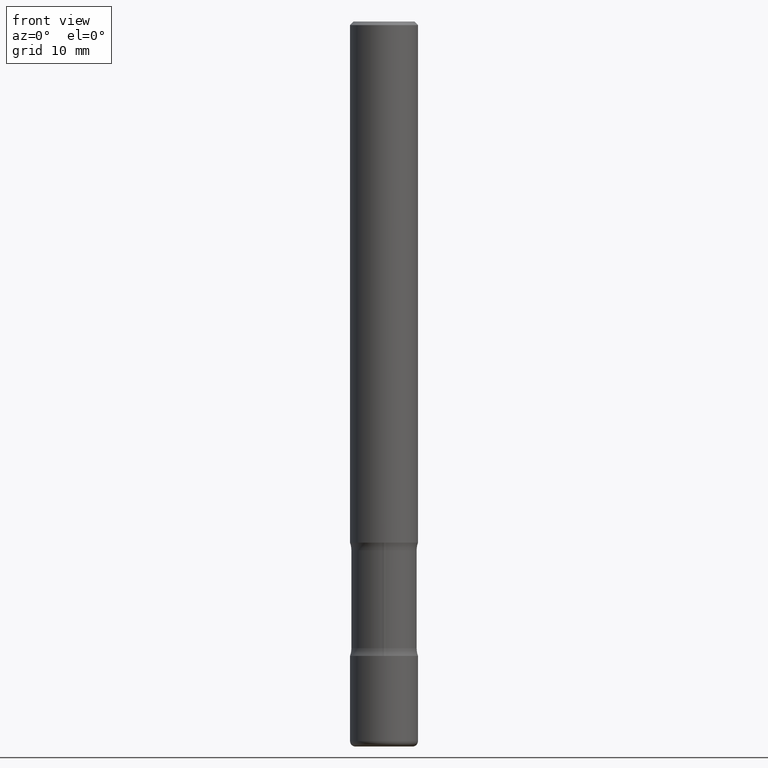
[diagram: clean part render]
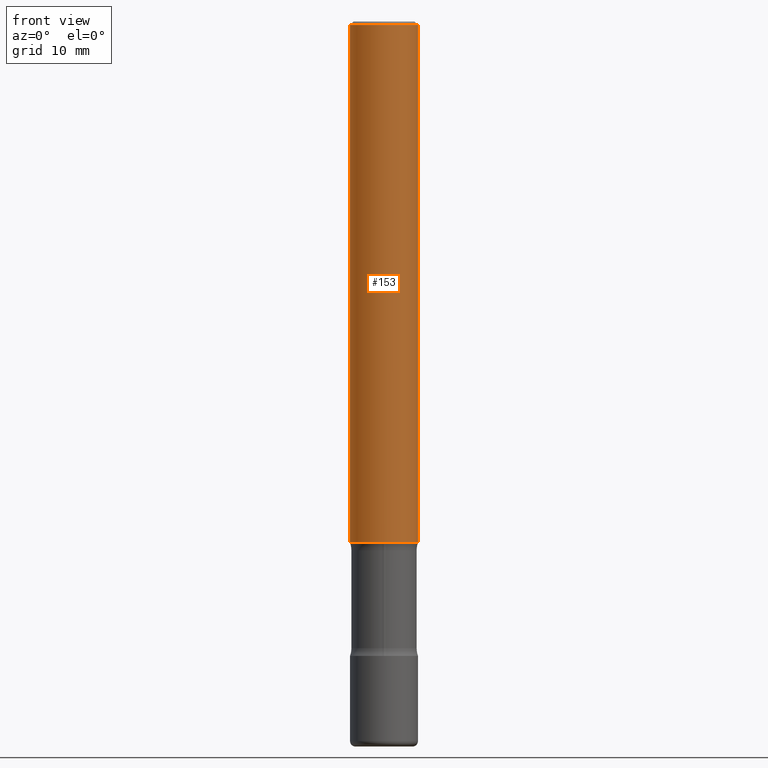
[diagram: same view with one face highlighted and labeled with its STEP entity id]
A machine part, front view. The second image highlights one B-rep face of the part: STEP entity #153.
In plain terms, the highlighted cylindrical surface (edge-blend (fillet) strip) has radius 4.7625 mm, axis along (-0, 0, 1).
Its self-contained STEP definition (entity closure, byte-faithful):
#6 = DIRECTION ( 'NONE',  ( -2.445468806185136597E-29, 3.491481338843145583E-15, 1.000000000000000000 ) ) ;
#35 = ORIENTED_EDGE ( 'NONE', *, *, #46, .T. ) ;
#38 = VERTEX_POINT ( 'NONE', #699 ) ;
#46 = EDGE_CURVE ( 'NONE', #116, #729, #624, .T. ) ;
#100 = DIRECTION ( 'NONE',  ( -2.445468806185136877E-29, 3.491481338843145188E-15, 1.000000000000000000 ) ) ;
#116 = VERTEX_POINT ( 'NONE', #122 ) ;
#122 = CARTESIAN_POINT ( 'NONE',  ( -0.1874999999999999722, -3.721651608425263776E-15, -2.875000000000000000 ) ) ;
#123 = EDGE_CURVE ( 'NONE', #38, #564, #557, .T. ) ;
#135 = DIRECTION ( 'NONE',  ( 1.000000000000000000, -6.982962677686265133E-15, 0.000000000000000000 ) ) ;
#145 = EDGE_LOOP ( 'NONE', ( #531, #35, #544, #232 ) ) ;
#153 = ADVANCED_FACE ( 'NONE', ( #328 ), #576, .T. ) ;
#194 = CARTESIAN_POINT ( 'NONE',  ( 4.890937612370283668E-31, -6.982962677686305168E-17, -0.02000000000000004205 ) ) ;
#199 = DIRECTION ( 'NONE',  ( -2.445468806185136597E-29, 3.491481338843145583E-15, 1.000000000000000000 ) ) ;
#212 = VECTOR ( 'NONE', #100, 39.37007874015748143 ) ;
#218 = CARTESIAN_POINT ( 'NONE',  ( -0.1874999999999999167, 1.332267629550187257E-15, -9.223003294227943787E-30 ) ) ;
#232 = ORIENTED_EDGE ( 'NONE', *, *, #123, .F. ) ;
#259 = CARTESIAN_POINT ( 'NONE',  ( 7.030722817782267716E-29, -1.003800884917404311E-14, -2.875000000000000000 ) ) ;
#271 = LINE ( 'NONE', #218, #387 ) ;
#328 = FACE_OUTER_BOUND ( 'NONE', #145, .T. ) ;
#337 = CARTESIAN_POINT ( 'NONE',  ( 0.1875000000000000278, -1.134731435124021811E-14, -2.875000000000000000 ) ) ;
#363 = EDGE_CURVE ( 'NONE', #729, #564, #368, .T. ) ;
#368 = LINE ( 'NONE', #794, #212 ) ;
#385 = AXIS2_PLACEMENT_3D ( 'NONE', #194, #639, #135 ) ;
#387 = VECTOR ( 'NONE', #394, 39.37007874015748143 ) ;
#392 = CARTESIAN_POINT ( 'NONE',  ( 0.000000000000000000, 0.000000000000000000, 0.000000000000000000 ) ) ;
#394 = DIRECTION ( 'NONE',  ( -2.445468806185136877E-29, 3.491481338843145188E-15, 1.000000000000000000 ) ) ;
#444 = DIRECTION ( 'NONE',  ( 1.000000000000000000, -6.982962677686265922E-15, 4.876176775795935793E-29 ) ) ;
#502 = AXIS2_PLACEMENT_3D ( 'NONE', #392, #6, #444 ) ;
#531 = ORIENTED_EDGE ( 'NONE', *, *, #668, .F. ) ;
#544 = ORIENTED_EDGE ( 'NONE', *, *, #363, .T. ) ;
#557 = CIRCLE ( 'NONE', #385, 0.1874999999999997780 ) ;
#564 = VERTEX_POINT ( 'NONE', #708 ) ;
#576 = CYLINDRICAL_SURFACE ( 'NONE', #502, 0.1874999999999999167 ) ;
#583 = DIRECTION ( 'NONE',  ( 1.000000000000000000, -6.982962677686261189E-15, 0.000000000000000000 ) ) ;
#613 = AXIS2_PLACEMENT_3D ( 'NONE', #259, #199, #583 ) ;
#624 = CIRCLE ( 'NONE', #613, 0.1875000000000000278 ) ;
#639 = DIRECTION ( 'NONE',  ( -2.445468806185136597E-29, 3.491481338843145583E-15, 1.000000000000000000 ) ) ;
#668 = EDGE_CURVE ( 'NONE', #116, #38, #271, .T. ) ;
#699 = CARTESIAN_POINT ( 'NONE',  ( -0.1874999999999997780, 1.239475875289310330E-15, -0.02000000000000004205 ) ) ;
#708 = CARTESIAN_POINT ( 'NONE',  ( 0.1874999999999997780, -1.356173001359023691E-15, -0.02000000000000004205 ) ) ;
#729 = VERTEX_POINT ( 'NONE', #337 ) ;
#794 = CARTESIAN_POINT ( 'NONE',  ( 0.1874999999999999167, -1.309305502066174219E-15, 9.142831454617375408E-30 ) ) ;